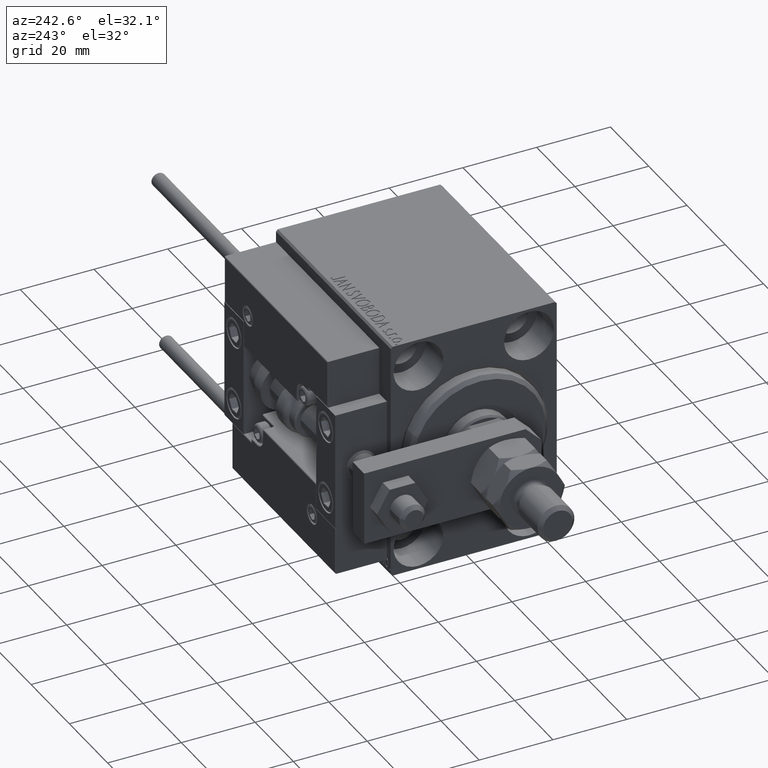
[diagram: clean part render]
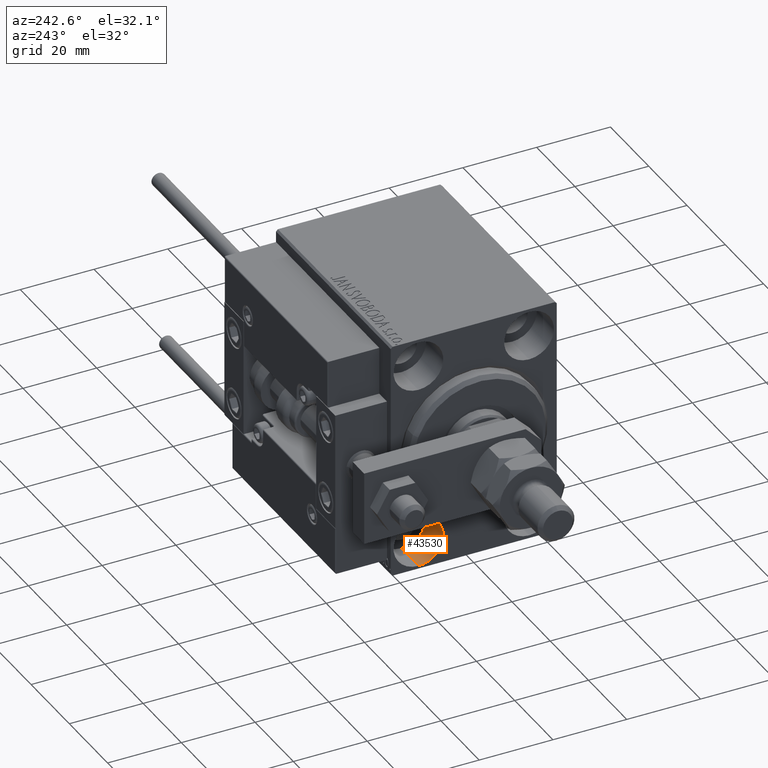
[diagram: same view with one face highlighted and labeled with its STEP entity id]
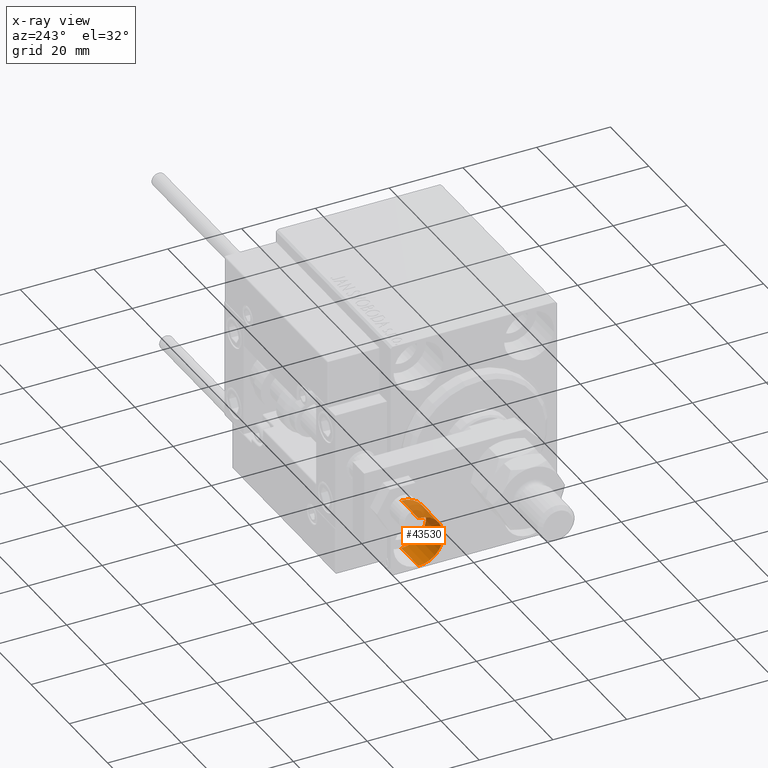
[diagram: x-ray of the same camera — body ghosted, the highlighted face saturated]
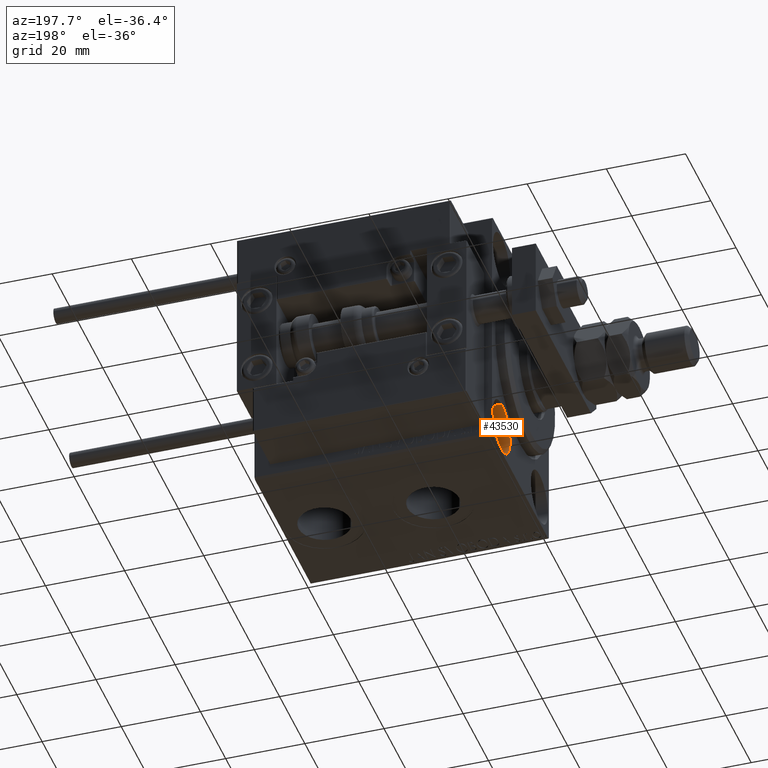
[diagram: same view with one face highlighted and labeled with its STEP entity id]
A machine part, auxiliary view. The second image highlights one B-rep face of the part: STEP entity #43530.
The next image is the same camera in x-ray: the body ghosted, the highlighted face saturated — about 27% of this face is hidden behind the body in this view.
A second angle (auxiliary view) of the same face is appended — the face is thin or edge-on in the first view.
In plain terms, the highlighted cylindrical surface (edge-blend (fillet) strip) has radius 6.75 mm, axis along (-1, -0, -0).
Its self-contained STEP definition (entity closure, byte-faithful):
#1669 = DIRECTION ( 'NONE',  ( -1.000000000000000000, 0.000000000000000000, 0.000000000000000000 ) ) ;
#2703 = VECTOR ( 'NONE', #46210, 1000.000000000000000 ) ;
#3019 = CARTESIAN_POINT ( 'NONE',  ( 9.000000000000000000, 14.99999999999999645, -18.25000000000000355 ) ) ;
#8762 = CARTESIAN_POINT ( 'NONE',  ( 9.000000000000000000, 14.99999999999999645, -25.00000000000000000 ) ) ;
#10619 = DIRECTION ( 'NONE',  ( 0.000000000000000000, 0.000000000000000000, 1.000000000000000000 ) ) ;
#14487 = CARTESIAN_POINT ( 'NONE',  ( 0.000000000000000000, 14.99999999999999645, -18.25000000000000355 ) ) ;
#17674 = DIRECTION ( 'NONE',  ( 0.000000000000000000, 0.000000000000000000, 1.000000000000000000 ) ) ;
#17762 = VERTEX_POINT ( 'NONE', #14487 ) ;
#18344 = AXIS2_PLACEMENT_3D ( 'NONE', #8762, #32379, #48942 ) ;
#20378 = ORIENTED_EDGE ( 'NONE', *, *, #26781, .T. ) ;
#21066 = CYLINDRICAL_SURFACE ( 'NONE', #18344, 6.749999999999999112 ) ;
#21261 = EDGE_CURVE ( 'NONE', #22941, #29670, #29640, .T. ) ;
#22941 = VERTEX_POINT ( 'NONE', #50750 ) ;
#23206 = CARTESIAN_POINT ( 'NONE',  ( 9.000000000000000000, 14.99999999999999645, -25.00000000000000000 ) ) ;
#23230 = ORIENTED_EDGE ( 'NONE', *, *, #21261, .T. ) ;
#24503 = FACE_OUTER_BOUND ( 'NONE', #46115, .T. ) ;
#25534 = EDGE_CURVE ( 'NONE', #42437, #17762, #26136, .T. ) ;
#26136 = LINE ( 'NONE', #38458, #42248 ) ;
#26348 = AXIS2_PLACEMENT_3D ( 'NONE', #37628, #1669, #17674 ) ;
#26625 = DIRECTION ( 'NONE',  ( -1.000000000000000000, 0.000000000000000000, 0.000000000000000000 ) ) ;
#26781 = EDGE_CURVE ( 'NONE', #29670, #17762, #41405, .T. ) ;
#29640 = LINE ( 'NONE', #30154, #2703 ) ;
#29670 = VERTEX_POINT ( 'NONE', #47824 ) ;
#30154 = CARTESIAN_POINT ( 'NONE',  ( 9.000000000000000000, 14.99999999999999645, -31.75000000000000000 ) ) ;
#30288 = AXIS2_PLACEMENT_3D ( 'NONE', #23206, #26625, #10619 ) ;
#32379 = DIRECTION ( 'NONE',  ( -1.000000000000000000, -0.000000000000000000, -0.000000000000000000 ) ) ;
#37628 = CARTESIAN_POINT ( 'NONE',  ( 0.000000000000000000, 14.99999999999999645, -25.00000000000000000 ) ) ;
#38206 = ORIENTED_EDGE ( 'NONE', *, *, #50339, .F. ) ;
#38458 = CARTESIAN_POINT ( 'NONE',  ( 9.000000000000000000, 14.99999999999999645, -18.25000000000000355 ) ) ;
#41405 = CIRCLE ( 'NONE', #26348, 6.749999999999999112 ) ;
#42248 = VECTOR ( 'NONE', #45591, 1000.000000000000000 ) ;
#42437 = VERTEX_POINT ( 'NONE', #3019 ) ;
#42899 = CIRCLE ( 'NONE', #30288, 6.749999999999999112 ) ;
#43530 = ADVANCED_FACE ( 'NONE', ( #24503 ), #21066, .F. ) ;
#43781 = ORIENTED_EDGE ( 'NONE', *, *, #25534, .F. ) ;
#45591 = DIRECTION ( 'NONE',  ( -1.000000000000000000, -0.000000000000000000, -0.000000000000000000 ) ) ;
#46115 = EDGE_LOOP ( 'NONE', ( #38206, #23230, #20378, #43781 ) ) ;
#46210 = DIRECTION ( 'NONE',  ( -1.000000000000000000, -0.000000000000000000, -0.000000000000000000 ) ) ;
#47824 = CARTESIAN_POINT ( 'NONE',  ( 0.000000000000000000, 14.99999999999999645, -31.75000000000000000 ) ) ;
#48942 = DIRECTION ( 'NONE',  ( 0.000000000000000000, 0.000000000000000000, 1.000000000000000000 ) ) ;
#50339 = EDGE_CURVE ( 'NONE', #22941, #42437, #42899, .T. ) ;
#50750 = CARTESIAN_POINT ( 'NONE',  ( 9.000000000000000000, 14.99999999999999645, -31.75000000000000000 ) ) ;